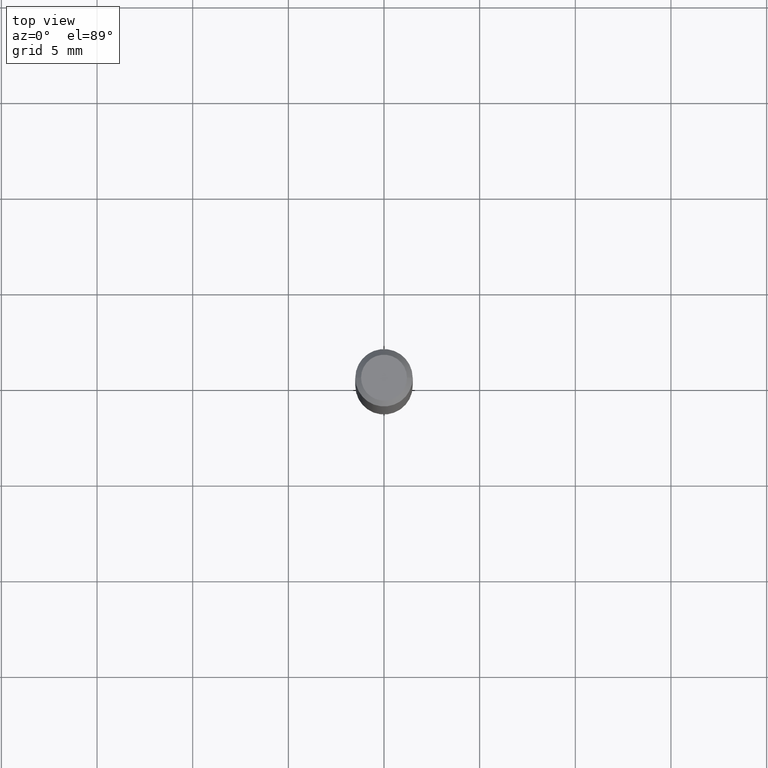
[diagram: clean part render]
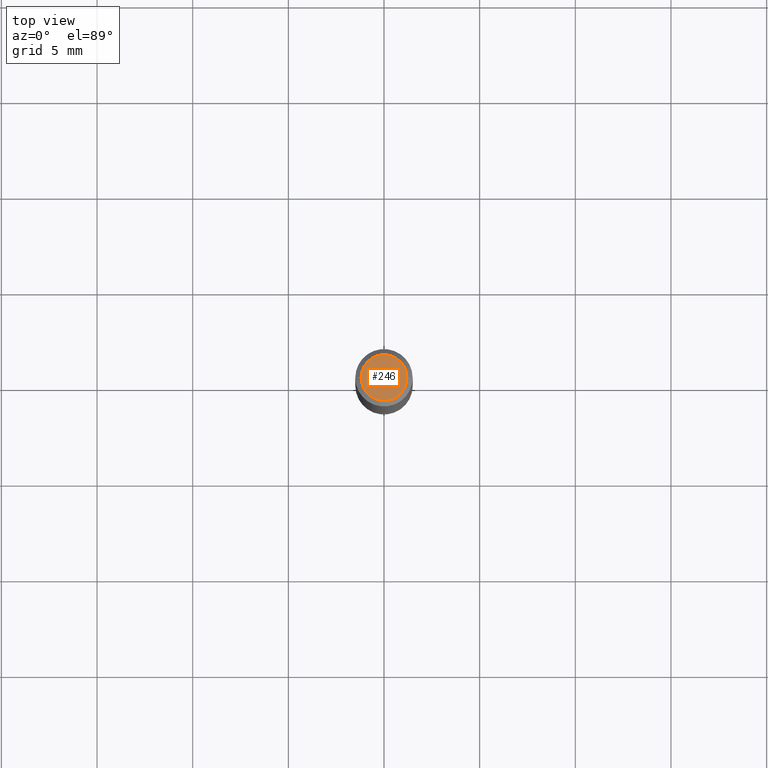
[diagram: same view with one face highlighted and labeled with its STEP entity id]
A machine part, top view. The second image highlights one B-rep face of the part: STEP entity #246.
In plain terms, the highlighted planar face has unit normal (0, -0, -1).
Its self-contained STEP definition (entity closure, byte-faithful):
#3 = AXIS2_PLACEMENT_3D ( 'NONE', #77, #73, #485 ) ;
#16 = AXIS2_PLACEMENT_3D ( 'NONE', #361, #280, #126 ) ;
#48 = EDGE_CURVE ( 'NONE', #303, #272, #360, .T. ) ;
#73 = DIRECTION ( 'NONE',  ( -2.445468806185136597E-29, 3.491481338843145583E-15, 1.000000000000000000 ) ) ;
#77 = CARTESIAN_POINT ( 'NONE',  ( 8.265746106709734507E-48, -1.180129479067563789E-33, -3.380025165646692144E-19 ) ) ;
#96 = CARTESIAN_POINT ( 'NONE',  ( 8.265746106709734507E-48, -1.180129479067563789E-33, -3.380025165646692144E-19 ) ) ;
#126 = DIRECTION ( 'NONE',  ( -1.000000000000000000, 6.982962677686265922E-15, -4.876176775795935793E-29 ) ) ;
#169 = CARTESIAN_POINT ( 'NONE',  ( 0.04724000000000000421, -3.852183633974369838E-16, -3.380025165621689721E-19 ) ) ;
#202 = FACE_OUTER_BOUND ( 'NONE', #244, .T. ) ;
#205 = PLANE ( 'NONE',  #16 ) ;
#244 = EDGE_LOOP ( 'NONE', ( #374, #404 ) ) ;
#246 = ADVANCED_FACE ( 'NONE', ( #202 ), #205, .F. ) ;
#264 = AXIS2_PLACEMENT_3D ( 'NONE', #96, #402, #411 ) ;
#272 = VERTEX_POINT ( 'NONE', #169 ) ;
#280 = DIRECTION ( 'NONE',  ( 2.438088387897960049E-29, -3.491481338843145188E-15, -1.000000000000000000 ) ) ;
#303 = VERTEX_POINT ( 'NONE', #318 ) ;
#318 = CARTESIAN_POINT ( 'NONE',  ( -0.04724000000000000421, 3.504923541997677355E-16, -3.380025165670481712E-19 ) ) ;
#360 = CIRCLE ( 'NONE', #3, 0.04724000000000000421 ) ;
#361 = CARTESIAN_POINT ( 'NONE',  ( 4.132873053354867254E-48, -5.900647395337818946E-34, -1.690012582823346072E-19 ) ) ;
#374 = ORIENTED_EDGE ( 'NONE', *, *, #48, .T. ) ;
#394 = CIRCLE ( 'NONE', #264, 0.04724000000000000421 ) ;
#402 = DIRECTION ( 'NONE',  ( -2.445468806185136597E-29, 3.491481338843145583E-15, 1.000000000000000000 ) ) ;
#404 = ORIENTED_EDGE ( 'NONE', *, *, #462, .T. ) ;
#411 = DIRECTION ( 'NONE',  ( 1.000000000000000000, -6.982962677686266711E-15, 4.876185090822587894E-29 ) ) ;
#462 = EDGE_CURVE ( 'NONE', #272, #303, #394, .T. ) ;
#485 = DIRECTION ( 'NONE',  ( 1.000000000000000000, -6.982962677686266711E-15, 4.876185090822587894E-29 ) ) ;